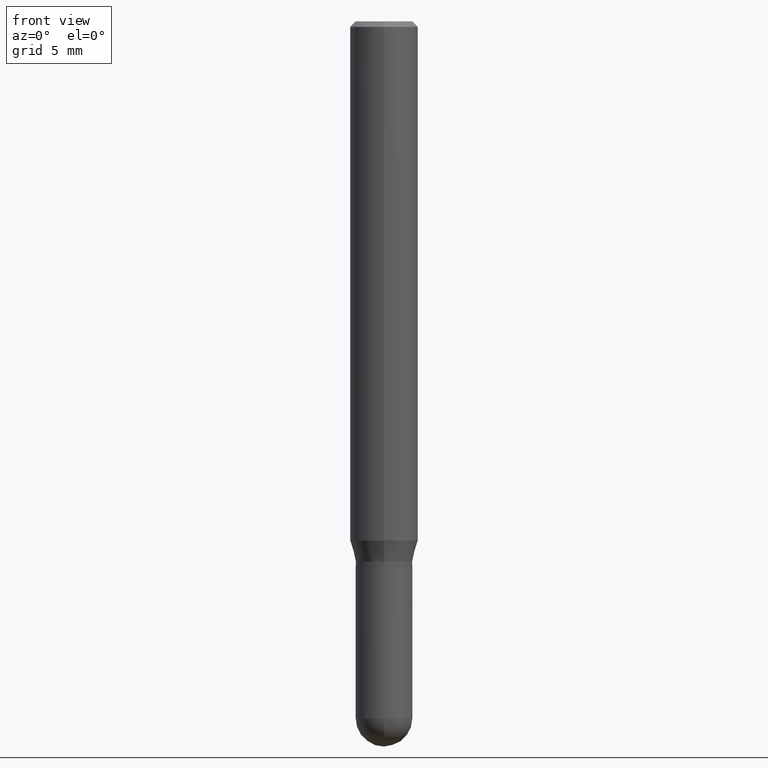
[diagram: clean part render]
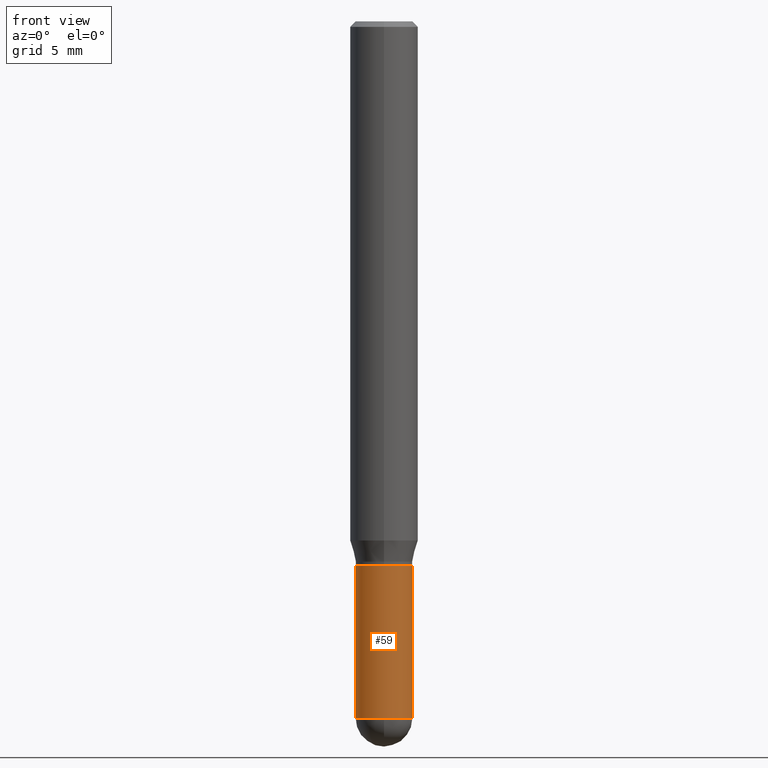
[diagram: same view with one face highlighted and labeled with its STEP entity id]
A machine part, front view. The second image highlights one B-rep face of the part: STEP entity #59.
In plain terms, the highlighted cylindrical surface (edge-blend (fillet) strip) has radius 1.9837 mm, axis along (-0, 0, 1).
Its self-contained STEP definition (entity closure, byte-faithful):
#1 = CIRCLE ( 'NONE', #184, 0.07810000000000000275 ) ;
#7 = VERTEX_POINT ( 'NONE', #489 ) ;
#11 = VECTOR ( 'NONE', #499, 39.37007874015748143 ) ;
#36 = CARTESIAN_POINT ( 'NONE',  ( 0.07810000000000000275, -6.519119381820976762E-15, -1.921900000000000164 ) ) ;
#48 = DIRECTION ( 'NONE',  ( -2.445468806185136597E-29, 3.491481338843145583E-15, 1.000000000000000000 ) ) ;
#59 = ADVANCED_FACE ( 'NONE', ( #401 ), #448, .T. ) ;
#67 = CARTESIAN_POINT ( 'NONE',  ( -5.549338766285910317E-16, -0.07810000000000670572, -1.921899999999999720 ) ) ;
#73 = EDGE_CURVE ( 'NONE', #400, #7, #494, .T. ) ;
#85 = ORIENTED_EDGE ( 'NONE', *, *, #148, .T. ) ;
#89 = EDGE_CURVE ( 'NONE', #354, #347, #299, .T. ) ;
#102 = DIRECTION ( 'NONE',  ( 1.000000000000000000, -6.982962677686266711E-15, 0.000000000000000000 ) ) ;
#140 = CARTESIAN_POINT ( 'NONE',  ( 3.668203209277704895E-29, -5.237222008264718177E-15, -1.500000000000000222 ) ) ;
#148 = EDGE_CURVE ( 'NONE', #354, #157, #468, .T. ) ;
#157 = VERTEX_POINT ( 'NONE', #67 ) ;
#167 = AXIS2_PLACEMENT_3D ( 'NONE', #215, #338, #497 ) ;
#170 = CARTESIAN_POINT ( 'NONE',  ( 0.000000000000000000, 0.000000000000000000, 0.000000000000000000 ) ) ;
#171 = EDGE_CURVE ( 'NONE', #347, #7, #1, .T. ) ;
#177 = CARTESIAN_POINT ( 'NONE',  ( 4.699946498607214373E-29, -6.710277985122641264E-15, -1.921900000000000164 ) ) ;
#184 = AXIS2_PLACEMENT_3D ( 'NONE', #140, #222, #501 ) ;
#191 = CARTESIAN_POINT ( 'NONE',  ( -0.07810000000000000275, -5.418816120065042244E-15, -1.921900000000000164 ) ) ;
#192 = ORIENTED_EDGE ( 'NONE', *, *, #89, .F. ) ;
#200 = DIRECTION ( 'NONE',  ( 1.000000000000000000, -6.982962677686266711E-15, 4.876176775795935232E-29 ) ) ;
#207 = EDGE_LOOP ( 'NONE', ( #192, #85, #467, #425, #435 ) ) ;
#212 = CARTESIAN_POINT ( 'NONE',  ( -0.07810000000000000275, 5.549338766286382647E-16, -3.841688305489081275E-30 ) ) ;
#215 = CARTESIAN_POINT ( 'NONE',  ( 4.699946498607214373E-29, -6.710277985122641264E-15, -1.921900000000000164 ) ) ;
#217 = AXIS2_PLACEMENT_3D ( 'NONE', #170, #48, #200 ) ;
#222 = DIRECTION ( 'NONE',  ( -2.445468806185136597E-29, 3.491481338843145583E-15, 1.000000000000000000 ) ) ;
#226 = CARTESIAN_POINT ( 'NONE',  ( -0.07810000000000000275, -5.418816120065042244E-15, -1.500000000000000222 ) ) ;
#232 = EDGE_CURVE ( 'NONE', #157, #400, #393, .T. ) ;
#244 = AXIS2_PLACEMENT_3D ( 'NONE', #177, #264, #102 ) ;
#257 = DIRECTION ( 'NONE',  ( -2.445468806185136877E-29, 3.491481338843145188E-15, 1.000000000000000000 ) ) ;
#264 = DIRECTION ( 'NONE',  ( -2.445468806185136597E-29, 3.491481338843145583E-15, 1.000000000000000000 ) ) ;
#299 = LINE ( 'NONE', #212, #411 ) ;
#331 = CARTESIAN_POINT ( 'NONE',  ( 0.07810000000000000275, -5.453693851272974364E-16, 3.808294061896625703E-30 ) ) ;
#338 = DIRECTION ( 'NONE',  ( -2.445468806185136597E-29, 3.491481338843145583E-15, 1.000000000000000000 ) ) ;
#347 = VERTEX_POINT ( 'NONE', #226 ) ;
#354 = VERTEX_POINT ( 'NONE', #191 ) ;
#393 = CIRCLE ( 'NONE', #167, 0.07810000000000000275 ) ;
#400 = VERTEX_POINT ( 'NONE', #36 ) ;
#401 = FACE_OUTER_BOUND ( 'NONE', #207, .T. ) ;
#411 = VECTOR ( 'NONE', #257, 39.37007874015748143 ) ;
#425 = ORIENTED_EDGE ( 'NONE', *, *, #73, .T. ) ;
#435 = ORIENTED_EDGE ( 'NONE', *, *, #171, .F. ) ;
#448 = CYLINDRICAL_SURFACE ( 'NONE', #217, 0.07810000000000000275 ) ;
#467 = ORIENTED_EDGE ( 'NONE', *, *, #232, .T. ) ;
#468 = CIRCLE ( 'NONE', #244, 0.07810000000000000275 ) ;
#489 = CARTESIAN_POINT ( 'NONE',  ( 0.07810000000000000275, -5.782591393392015613E-15, -1.500000000000000222 ) ) ;
#494 = LINE ( 'NONE', #331, #11 ) ;
#497 = DIRECTION ( 'NONE',  ( 1.000000000000000000, -6.982962677686266711E-15, 0.000000000000000000 ) ) ;
#499 = DIRECTION ( 'NONE',  ( -2.445468806185136877E-29, 3.491481338843145188E-15, 1.000000000000000000 ) ) ;
#501 = DIRECTION ( 'NONE',  ( 1.000000000000000000, -6.982962677686266711E-15, 0.000000000000000000 ) ) ;